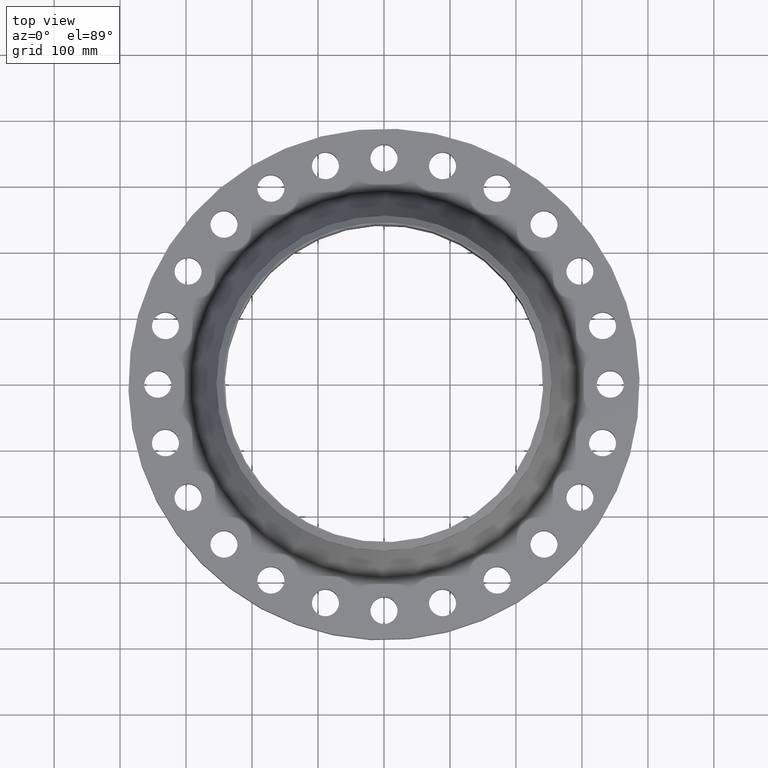
[diagram: clean part render]
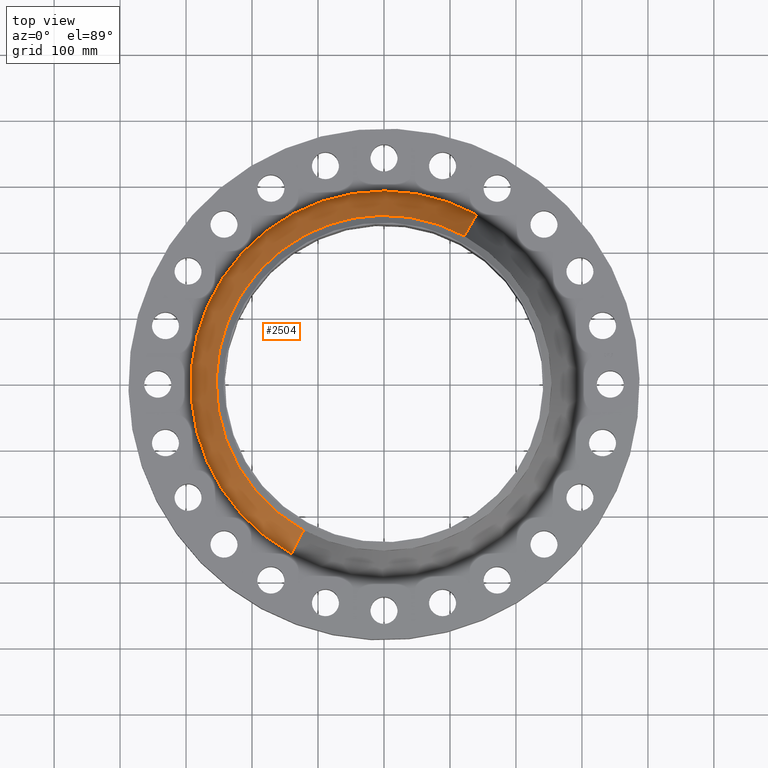
[diagram: same view with one face highlighted and labeled with its STEP entity id]
A machine part, top view. The second image highlights one B-rep face of the part: STEP entity #2504.
In plain terms, the highlighted conical surface has half-angle 25.231 deg.
Its self-contained STEP definition (entity closure, byte-faithful):
#2316=AXIS2_PLACEMENT_3D('Circle Axis2P3D',#2314,#2315,$) ;
#2477=AXIS2_PLACEMENT_3D('Cone Axis2P3D',#2474,#2475,#2476) ;
#2488=AXIS2_PLACEMENT_3D('Circle Axis2P3D',#2486,#2487,$) ;
#2311=CARTESIAN_POINT('Vertex',(-5.52660535107,-10.1163832379,2.81884796279)) ;
#2314=CARTESIAN_POINT('Axis2P3D Location',(0.,0.,2.81884796278)) ;
#2318=CARTESIAN_POINT('Vertex',(5.52660535107,10.1163832379,2.81884796278)) ;
#2474=CARTESIAN_POINT('Axis2P3D Location',(0.,0.,6.06053548147)) ;
#2479=CARTESIAN_POINT('Line Origine',(-5.16043036856,-9.44610442839,4.43969172212)) ;
#2483=CARTESIAN_POINT('Vertex',(-4.79425538604,-8.7758256189,6.06053548147)) ;
#2486=CARTESIAN_POINT('Axis2P3D Location',(0.,0.,6.06053548147)) ;
#2490=CARTESIAN_POINT('Vertex',(4.79425538605,8.77582561891,6.06053548145)) ;
#2493=CARTESIAN_POINT('Line Origine',(5.16043036856,9.44610442839,4.43969172212)) ;
#2315=DIRECTION('Axis2P3D Direction',(-0.,0.,-0.0393700787402)) ;
#2475=DIRECTION('Axis2P3D Direction',(0.,0.,-0.0393700787402)) ;
#2476=DIRECTION('Axis2P3D XDirection',(-0.0188750212049,-0.0345504945626,0.)) ;
#2480=DIRECTION('Vector Direction',(-0.00804579822596,-0.014727734864,-0.0356140710491)) ;
#2487=DIRECTION('Axis2P3D Direction',(-0.,0.,-0.0393700787402)) ;
#2494=DIRECTION('Vector Direction',(0.00804579822596,0.014727734864,-0.0356140710491)) ;
#2481=VECTOR('Line Direction',#2480,0.0393700787402) ;
#2495=VECTOR('Line Direction',#2494,0.0393700787402) ;
#2499=ORIENTED_EDGE('',*,*,#2320,.F.) ;
#2500=ORIENTED_EDGE('',*,*,#2485,.T.) ;
#2501=ORIENTED_EDGE('',*,*,#2492,.T.) ;
#2502=ORIENTED_EDGE('',*,*,#2497,.F.) ;
#2504=ADVANCED_FACE('PartBody',(#2503),#2478,.T.) ;
#2317=CIRCLE('generated circle',#2316,11.5275572661) ;
#2489=CIRCLE('generated circle',#2488,10.) ;
#2478=CONICAL_SURFACE('Cone',#2477,10.,0.440362021604) ;
#2320=EDGE_CURVE('',#2312,#2319,#2317,.T.) ;
#2485=EDGE_CURVE('',#2312,#2484,#2482,.F.) ;
#2492=EDGE_CURVE('',#2484,#2491,#2489,.T.) ;
#2497=EDGE_CURVE('',#2319,#2491,#2496,.F.) ;
#2498=EDGE_LOOP('',(#2499,#2500,#2501,#2502)) ;
#2503=FACE_OUTER_BOUND('',#2498,.T.) ;
#2482=LINE('Line',#2479,#2481) ;
#2496=LINE('Line',#2493,#2495) ;
#2312=VERTEX_POINT('',#2311) ;
#2319=VERTEX_POINT('',#2318) ;
#2484=VERTEX_POINT('',#2483) ;
#2491=VERTEX_POINT('',#2490) ;